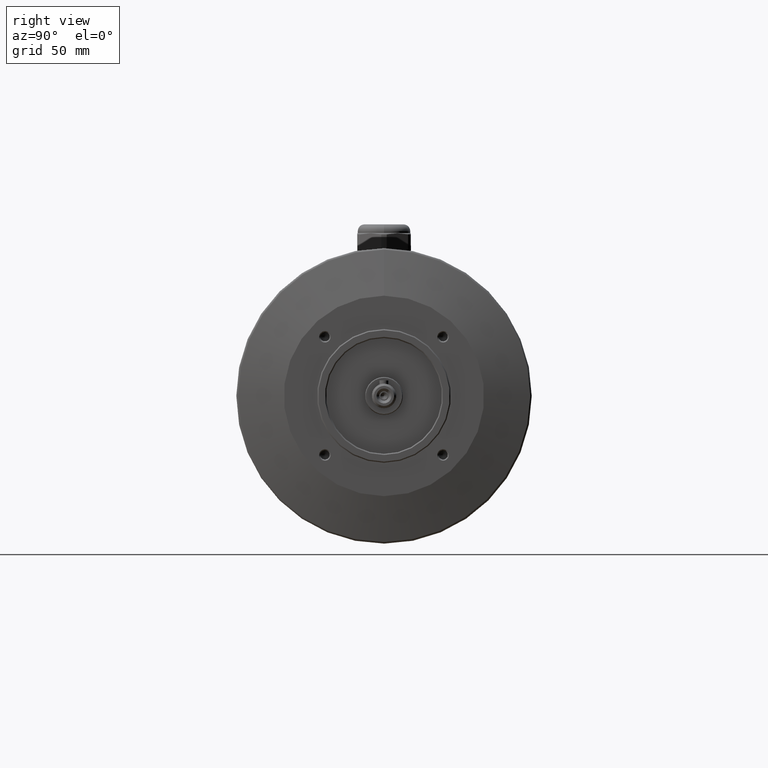
[diagram: clean part render]
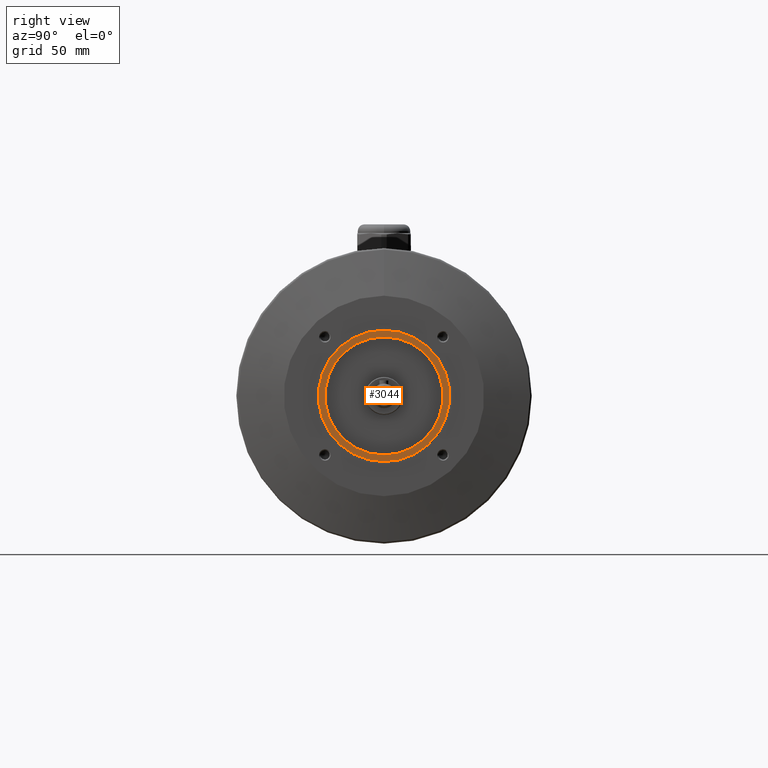
[diagram: same view with one face highlighted and labeled with its STEP entity id]
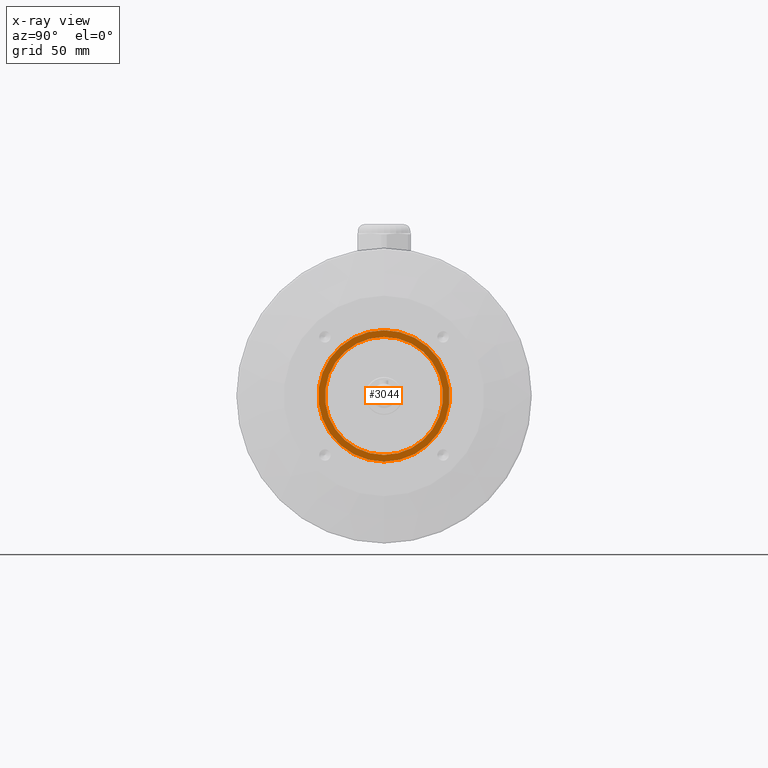
[diagram: x-ray of the same camera — body ghosted, the highlighted face saturated]
A machine part, right view. The second image highlights one B-rep face of the part: STEP entity #3044.
The next image is the same camera in x-ray: the body ghosted, the highlighted face saturated — about 0% of this face is hidden behind the body in this view.
In plain terms, the highlighted planar face has unit normal (1, 0, 0).
Its self-contained STEP definition (entity closure, byte-faithful):
#62=PLANE('',#3242);
#188=CIRCLE('',#3243,29.5);
#189=CIRCLE('',#3244,26.5);
#332=ORIENTED_EDGE('',*,*,#827,.T.);
#333=ORIENTED_EDGE('',*,*,#828,.T.);
#827=EDGE_CURVE('',#1078,#1078,#188,.T.);
#828=EDGE_CURVE('',#1079,#1079,#189,.F.);
#1078=VERTEX_POINT('',#4257);
#1079=VERTEX_POINT('',#4259);
#1495=EDGE_LOOP('',(#332));
#1496=EDGE_LOOP('',(#333));
#1732=FACE_BOUND('',#1495,.T.);
#1733=FACE_BOUND('',#1496,.T.);
#3044=ADVANCED_FACE('',(#1732,#1733),#62,.T.);
#3242=AXIS2_PLACEMENT_3D('',#4255,#3596,#3597);
#3243=AXIS2_PLACEMENT_3D('',#4256,#3598,#3599);
#3244=AXIS2_PLACEMENT_3D('',#4258,#3600,#3601);
#3596=DIRECTION('',(1.,0.,0.));
#3597=DIRECTION('',(0.,0.,-1.));
#3598=DIRECTION('',(1.,0.,0.));
#3599=DIRECTION('',(0.,0.,-1.));
#3600=DIRECTION('',(1.,0.,0.));
#3601=DIRECTION('',(0.,0.,-1.));
#4255=CARTESIAN_POINT('',(2.49999999999998,0.,30.));
#4256=CARTESIAN_POINT('',(2.49999999999998,0.,0.));
#4257=CARTESIAN_POINT('',(2.49999999999998,0.,-29.5));
#4258=CARTESIAN_POINT('',(2.49999999999998,0.,0.));
#4259=CARTESIAN_POINT('',(2.49999999999998,0.,-26.5));